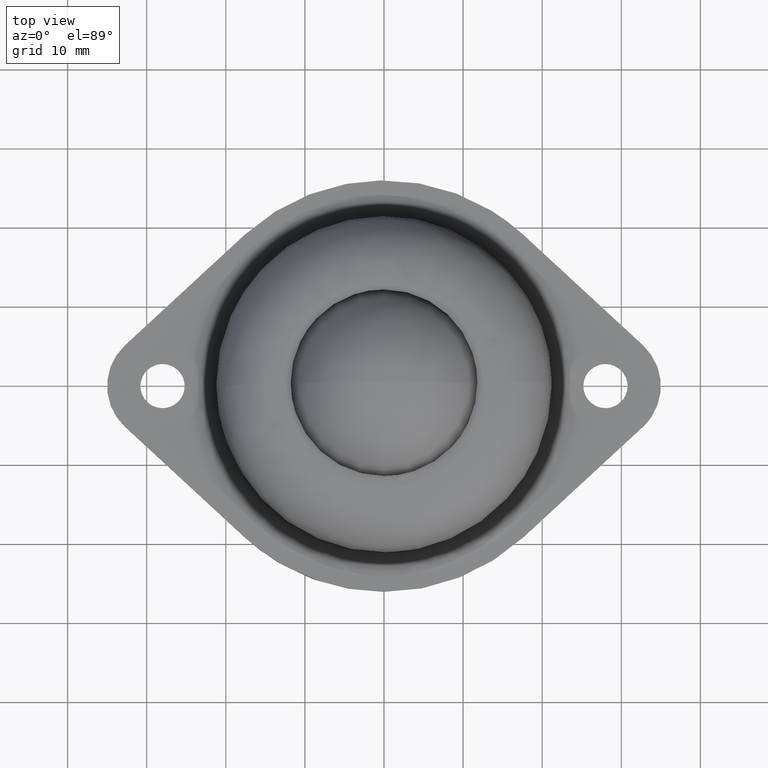
[diagram: clean part render]
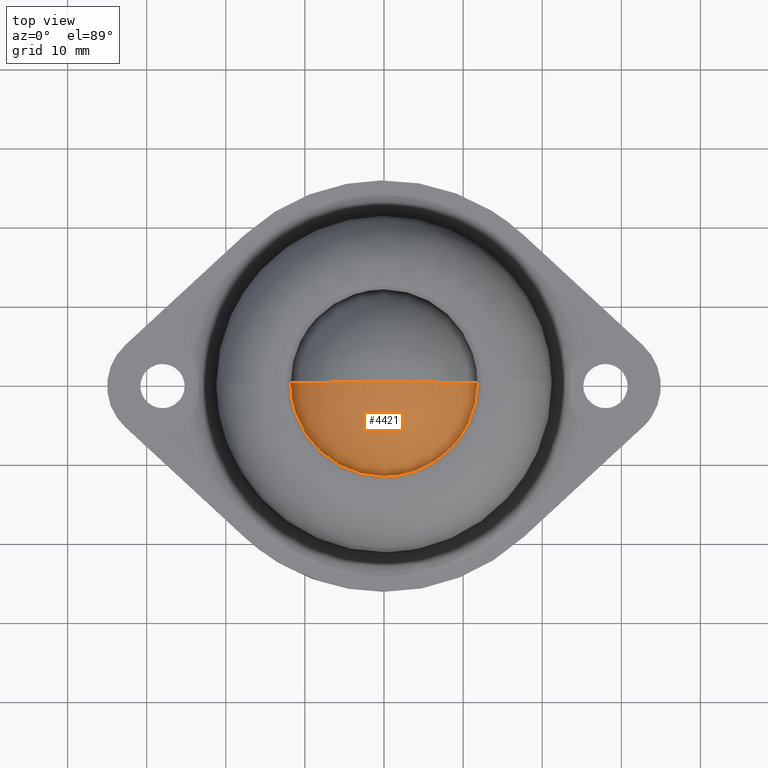
[diagram: same view with one face highlighted and labeled with its STEP entity id]
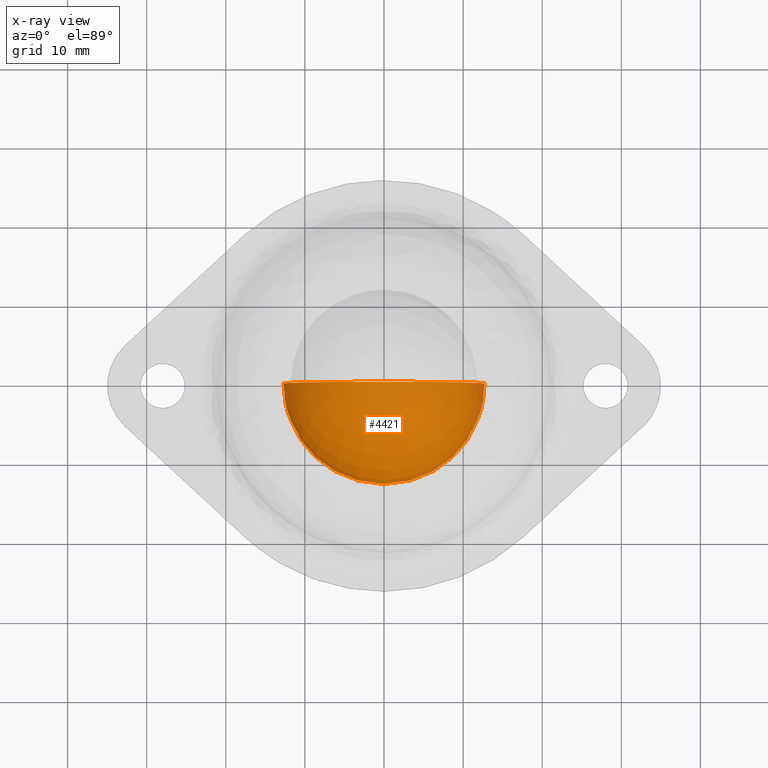
[diagram: x-ray of the same camera — body ghosted, the highlighted face saturated]
A machine part, top view. The second image highlights one B-rep face of the part: STEP entity #4421.
The next image is the same camera in x-ray: the body ghosted, the highlighted face saturated — about 0% of this face is hidden behind the body in this view.
In plain terms, the highlighted face is a freeform B-spline surface patch.
Its self-contained STEP definition (entity closure, byte-faithful):
#4301=CARTESIAN_POINT('',(-8.324920232350575,4.762500000000000,9.975079767649424));
#4302=CARTESIAN_POINT('',(-7.539550399109955,3.115094339622643,8.247266134520064));
#4303=CARTESIAN_POINT('',(-3.171398183752600,0.604761904761904,5.614407264989600));
#4304=CARTESIAN_POINT('',(3.171398183752600,0.604761904761904,5.614407264989600));
#4305=CARTESIAN_POINT('',(7.539550399109955,3.115094339622643,8.247266134520064));
#4306=CARTESIAN_POINT('',(8.324920232350575,4.762500000000000,9.975079767649424));
#4307=CARTESIAN_POINT('',(-10.052733865479940,3.115094339622643,10.760449600890050));
#4308=CARTESIAN_POINT('',(-9.514194551257800,0.604761904761904,8.785805448742199));
#4309=CARTESIAN_POINT('',(-4.296733023148684,-3.687096774193545,5.409800930553949));
#4310=CARTESIAN_POINT('',(4.296733023148684,-3.687096774193545,5.409800930553949));
#4311=CARTESIAN_POINT('',(9.514194551257800,0.604761904761904,8.785805448742199));
#4312=CARTESIAN_POINT('',(10.052733865479940,3.115094339622643,10.760449600890050));
#4313=CARTESIAN_POINT('',(-12.685592735010401,0.604761904761904,15.128601816247398));
#4314=CARTESIAN_POINT('',(-12.890199069446052,-3.687096774193545,14.003266976851316));
#4315=CARTESIAN_POINT('',(-6.659936185880460,-12.699999999999999,11.640063814119539));
#4316=CARTESIAN_POINT('',(6.659936185880460,-12.699999999999999,11.640063814119539));
#4317=CARTESIAN_POINT('',(12.890199069446052,-3.687096774193545,14.003266976851316));
#4318=CARTESIAN_POINT('',(12.685592735010401,0.604761904761904,15.128601816247398));
#4319=CARTESIAN_POINT('',(-12.685592735010401,0.604761904761904,21.471398183752601));
#4320=CARTESIAN_POINT('',(-12.890199069446052,-3.687096774193545,22.596733023148687));
#4321=CARTESIAN_POINT('',(-6.659936185880460,-12.699999999999999,24.959936185880458));
#4322=CARTESIAN_POINT('',(6.659936185880460,-12.699999999999999,24.959936185880458));
#4323=CARTESIAN_POINT('',(12.890199069446052,-3.687096774193545,22.596733023148687));
#4324=CARTESIAN_POINT('',(12.685592735010401,0.604761904761904,21.471398183752601));
#4325=CARTESIAN_POINT('',(-10.052733865479940,3.115094339622643,25.839550399109957));
#4326=CARTESIAN_POINT('',(-9.514194551257800,0.604761904761904,27.814194551257795));
#4327=CARTESIAN_POINT('',(-4.296733023148684,-3.687096774193545,31.190199069446049));
#4328=CARTESIAN_POINT('',(4.296733023148684,-3.687096774193545,31.190199069446049));
#4329=CARTESIAN_POINT('',(9.514194551257800,0.604761904761904,27.814194551257795));
#4330=CARTESIAN_POINT('',(10.052733865479940,3.115094339622643,25.839550399109957));
#4331=CARTESIAN_POINT('',(-8.324920232350575,4.762500000000000,26.624920232350576));
#4332=CARTESIAN_POINT('',(-7.539550399109955,3.115094339622643,28.352733865479944));
#4333=CARTESIAN_POINT('',(-3.171398183752600,0.604761904761904,30.985592735010396));
#4334=CARTESIAN_POINT('',(3.171398183752600,0.604761904761904,30.985592735010396));
#4335=CARTESIAN_POINT('',(7.539550399109955,3.115094339622643,28.352733865479944));
#4336=CARTESIAN_POINT('',(8.324920232350575,4.762500000000000,26.624920232350576));
#4344=(BOUNDED_SURFACE()B_SPLINE_SURFACE(2,2,((#4301,#4307,#4313,#4319,#4325,#4331),(#4302,#4308,#4314,#4320,#4326,#4332),(#4303,#4309,#4315,#4321,#4327,#4333),(#4304,#4310,#4316,#4322,#4328,#4334),(#4305,#4311,#4317,#4323,#4329,#4335),(#4306,#4312,#4318,#4324,#4330,#4336)),.UNSPECIFIED.,.F.,.F.,.U.)B_SPLINE_SURFACE_WITH_KNOTS((3,1,1,1,3),(3,1,1,1,3),(0.0,11.709777909240371,23.419555818480742,35.129333727721111,46.839111636961483),(0.0,11.709777909240380,23.419555818480760,35.129333727721132,46.839111636961512),.UNSPECIFIED.)GEOMETRIC_REPRESENTATION_ITEM()RATIONAL_B_SPLINE_SURFACE(((3.200000000000000,2.650000000000000,2.100000000000000,2.100000000000000,2.650000000000000,3.200000000000000),(2.650000000000000,2.100000000000000,1.550000000000000,1.550000000000000,2.100000000000000,2.650000000000000),(2.100000000000000,1.550000000000000,1.0,1.0,1.550000000000000,2.100000000000000),(2.100000000000000,1.550000000000000,1.0,1.0,1.550000000000000,2.100000000000000),(2.650000000000000,2.100000000000000,1.550000000000000,1.550000000000000,2.100000000000000,2.650000000000000),(3.200000000000000,2.650000000000000,2.100000000000000,2.100000000000000,2.650000000000000,3.200000000000000)))REPRESENTATION_ITEM('')SURFACE());
#4345=CARTESIAN_POINT('',(-12.699999999999971,0.0,18.299999200742199));
#4346=VERTEX_POINT('',#4345);
#4347=CARTESIAN_POINT('',(0.0,0.0,5.600000000000001));
#4348=VERTEX_POINT('',#4347);
#4349=CARTESIAN_POINT('',(-12.699999999999971,0.0,18.299999200742199));
#4350=CARTESIAN_POINT('',(-12.700014432995410,0.0,17.754523017074259));
#4351=CARTESIAN_POINT('',(-12.624587836039179,0.0,16.585635148395561));
#4352=CARTESIAN_POINT('',(-12.242284863990379,0.0,14.723111663321641));
#4353=CARTESIAN_POINT('',(-11.549739743951950,0.0,12.894493333634280));
#4354=CARTESIAN_POINT('',(-10.710906216400531,0.0,11.424357013771120));
#4355=CARTESIAN_POINT('',(-9.789338617311007,0.0,10.165703006332860));
#4356=CARTESIAN_POINT('',(-8.800149980803203,0.0,9.094284493856621));
#4357=CARTESIAN_POINT('',(-7.502708177321456,0.0,8.009365768377553));
#4358=CARTESIAN_POINT('',(-5.943766952973771,0.0,7.015390183829774));
#4359=CARTESIAN_POINT('',(-4.387834633680080,0.0,6.342772329692170));
#4360=CARTESIAN_POINT('',(-2.363662346610817,0.0,5.762497502111541));
#4361=CARTESIAN_POINT('',(-1.013070300804061,0.0,5.599743555469085));
#4362=CARTESIAN_POINT('',(0.0,0.0,5.600000000000001));
#4363=B_SPLINE_CURVE_WITH_KNOTS('',3,(#4349,#4350,#4351,#4352,#4353,#4354,#4355,#4356,#4357,#4358,#4359,#4360,#4361,#4362),.UNSPECIFIED.,.F.,.U.,(4,1,1,1,1,1,1,1,1,1,1,4),(0.000000049066387,1.636431874159015,3.506676214303138,5.688623685117015,7.480944451646723,8.571902500633966,10.364199507868671,11.844783708121820,13.637109236099191,15.896975329774040,16.910028338913961,19.949144194189561),.UNSPECIFIED.);
#4364=EDGE_CURVE('',#4346,#4348,#4363,.T.);
#4365=ORIENTED_EDGE('',*,*,#4364,.T.);
#4366=CARTESIAN_POINT('',(12.699999999999971,0.0,18.299999200742199));
#4367=VERTEX_POINT('',#4366);
#4368=CARTESIAN_POINT('',(12.699999999999971,0.0,18.299999200742199));
#4369=CARTESIAN_POINT('',(12.700014432995410,0.0,17.754523017074259));
#4370=CARTESIAN_POINT('',(12.624587836039179,0.0,16.585635148395561));
#4371=CARTESIAN_POINT('',(12.242284863990379,0.0,14.723111663321641));
#4372=CARTESIAN_POINT('',(11.549739743951950,0.0,12.894493333634280));
#4373=CARTESIAN_POINT('',(10.710906216400531,0.0,11.424357013771120));
#4374=CARTESIAN_POINT('',(9.789338617311007,0.0,10.165703006332860));
#4375=CARTESIAN_POINT('',(8.800149980803203,0.0,9.094284493856621));
#4376=CARTESIAN_POINT('',(7.502708177321456,0.0,8.009365768377553));
#4377=CARTESIAN_POINT('',(5.943766952973771,0.0,7.015390183829774));
#4378=CARTESIAN_POINT('',(4.387834633680080,0.0,6.342772329692170));
#4379=CARTESIAN_POINT('',(2.363662346610817,0.0,5.762497502111541));
#4380=CARTESIAN_POINT('',(1.013070300804061,0.0,5.599743555469085));
#4381=CARTESIAN_POINT('',(0.0,0.0,5.600000000000001));
#4382=B_SPLINE_CURVE_WITH_KNOTS('',3,(#4368,#4369,#4370,#4371,#4372,#4373,#4374,#4375,#4376,#4377,#4378,#4379,#4380,#4381),.UNSPECIFIED.,.F.,.U.,(4,1,1,1,1,1,1,1,1,1,1,4),(0.000000049066387,1.636431874159015,3.506676214303138,5.688623685117015,7.480944451646723,8.571902500633966,10.364199507868671,11.844783708121820,13.637109236099191,15.896975329774040,16.910028338913961,19.949144194189561),.UNSPECIFIED.);
#4383=EDGE_CURVE('',#4367,#4348,#4382,.T.);
#4384=ORIENTED_EDGE('',*,*,#4383,.F.);
#4385=CARTESIAN_POINT('',(0.0,0.0,31.0));
#4386=VERTEX_POINT('',#4385);
#4387=CARTESIAN_POINT('',(0.0,0.0,31.0));
#4388=CARTESIAN_POINT('',(0.571458362768212,0.0,31.000019755641699));
#4389=CARTESIAN_POINT('',(1.766323092012794,0.0,30.919224843803889));
#4390=CARTESIAN_POINT('',(3.626463104796663,0.0,30.525491173249488));
#4391=CARTESIAN_POINT('',(5.403770413128687,0.0,29.846131052167419));
#4392=CARTESIAN_POINT('',(6.966768205631660,0.0,28.960661396786989));
#4393=CARTESIAN_POINT('',(8.506584615642712,0.0,27.804059798343321));
#4394=CARTESIAN_POINT('',(9.846912824638952,0.0,26.413409537816481));
#4395=CARTESIAN_POINT('',(11.098892874681470,0.0,24.588626045897350));
#4396=CARTESIAN_POINT('',(11.919047438698311,0.0,22.840596014580569));
#4397=CARTESIAN_POINT('',(12.543124071399561,0.0,20.663701727903451));
#4398=CARTESIAN_POINT('',(12.700133698329751,0.0,19.209149779416379));
#4399=CARTESIAN_POINT('',(12.699999999999971,0.0,18.299999200742199));
#4400=B_SPLINE_CURVE_WITH_KNOTS('',3,(#4387,#4388,#4389,#4390,#4391,#4392,#4393,#4394,#4395,#4396,#4397,#4398,#4399),.UNSPECIFIED.,.F.,.U.,(4,1,1,1,1,1,1,1,1,1,4),(0.000000048986934,1.714377367343801,3.584611626164541,5.688623942018500,7.403006814926080,8.961537018933347,11.455149912381151,13.169540481544630,15.585273240986490,17.221725623450581,19.949145095140810),.UNSPECIFIED.);
#4401=EDGE_CURVE('',#4386,#4367,#4400,.T.);
#4402=ORIENTED_EDGE('',*,*,#4401,.F.);
#4403=CARTESIAN_POINT('',(0.0,0.0,31.0));
#4404=CARTESIAN_POINT('',(-0.571458362768212,0.0,31.000019755641699));
#4405=CARTESIAN_POINT('',(-1.766323092012794,0.0,30.919224843803889));
#4406=CARTESIAN_POINT('',(-3.626463104796663,0.0,30.525491173249488));
#4407=CARTESIAN_POINT('',(-5.403770413128687,0.0,29.846131052167419));
#4408=CARTESIAN_POINT('',(-6.966768205631660,0.0,28.960661396786989));
#4409=CARTESIAN_POINT('',(-8.506584615642712,0.0,27.804059798343321));
#4410=CARTESIAN_POINT('',(-9.846912824638952,0.0,26.413409537816481));
#4411=CARTESIAN_POINT('',(-11.098892874681470,0.0,24.588626045897350));
#4412=CARTESIAN_POINT('',(-11.919047438698311,0.0,22.840596014580569));
#4413=CARTESIAN_POINT('',(-12.543124071399561,0.0,20.663701727903451));
#4414=CARTESIAN_POINT('',(-12.700133698329751,0.0,19.209149779416379));
#4415=CARTESIAN_POINT('',(-12.699999999999971,0.0,18.299999200742199));
#4416=B_SPLINE_CURVE_WITH_KNOTS('',3,(#4403,#4404,#4405,#4406,#4407,#4408,#4409,#4410,#4411,#4412,#4413,#4414,#4415),.UNSPECIFIED.,.F.,.U.,(4,1,1,1,1,1,1,1,1,1,4),(0.000000048986934,1.714377367343801,3.584611626164541,5.688623942018500,7.403006814926080,8.961537018933347,11.455149912381151,13.169540481544630,15.585273240986490,17.221725623450581,19.949145095140810),.UNSPECIFIED.);
#4417=EDGE_CURVE('',#4386,#4346,#4416,.T.);
#4418=ORIENTED_EDGE('',*,*,#4417,.T.);
#4419=EDGE_LOOP('',(#4365,#4384,#4402,#4418));
#4420=FACE_OUTER_BOUND('',#4419,.T.);
#4421=ADVANCED_FACE('',(#4420),#4344,.T.);